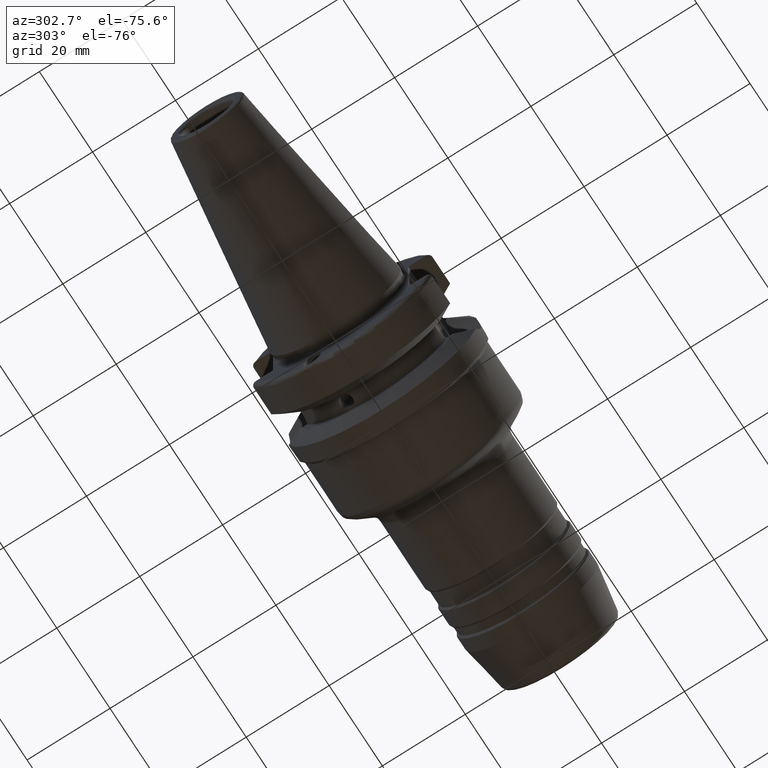
[diagram: clean part render]
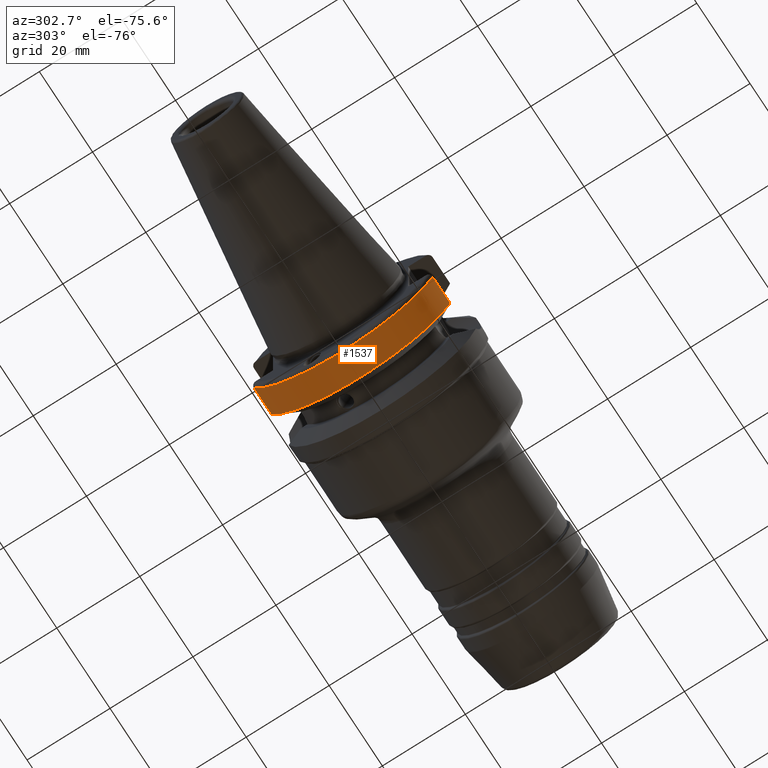
[diagram: same view with one face highlighted and labeled with its STEP entity id]
A machine part, auxiliary view. The second image highlights one B-rep face of the part: STEP entity #1537.
In plain terms, the highlighted cylindrical surface (partial cylindrical patch) has radius 23 mm, axis along (1, 0, 0).
Its self-contained STEP definition (entity closure, byte-faithful):
#168=LINE('',#2918,#241);
#175=LINE('',#2973,#248);
#241=VECTOR('',#2171,10.);
#248=VECTOR('',#2208,10.);
#293=CYLINDRICAL_SURFACE('',#1755,23.);
#369=FACE_OUTER_BOUND('',#471,.T.);
#471=EDGE_LOOP('',(#1325,#1326,#1327,#1328));
#579=CIRCLE('',#1754,23.);
#580=CIRCLE('',#1756,23.);
#716=VERTEX_POINT('',#2902);
#717=VERTEX_POINT('',#2907);
#725=VERTEX_POINT('',#2960);
#727=VERTEX_POINT('',#2971);
#921=EDGE_CURVE('',#716,#717,#168,.T.);
#936=EDGE_CURVE('',#716,#725,#579,.T.);
#939=EDGE_CURVE('',#717,#727,#580,.T.);
#940=EDGE_CURVE('',#727,#725,#175,.T.);
#1325=ORIENTED_EDGE('',*,*,#921,.T.);
#1326=ORIENTED_EDGE('',*,*,#939,.T.);
#1327=ORIENTED_EDGE('',*,*,#940,.T.);
#1328=ORIENTED_EDGE('',*,*,#936,.F.);
#1537=ADVANCED_FACE('',(#369),#293,.T.);
#1754=AXIS2_PLACEMENT_3D('',#2961,#2202,#2203);
#1755=AXIS2_PLACEMENT_3D('',#2970,#2204,#2205);
#1756=AXIS2_PLACEMENT_3D('',#2972,#2206,#2207);
#2171=DIRECTION('',(-1.,-1.62798202122572E-21,0.));
#2202=DIRECTION('center_axis',(1.,1.62798202122572E-21,0.));
#2203=DIRECTION('ref_axis',(0.,0.,-1.));
#2204=DIRECTION('center_axis',(1.,1.62798202122572E-21,0.));
#2205=DIRECTION('ref_axis',(0.,1.,0.));
#2206=DIRECTION('center_axis',(1.,1.62798202122572E-21,0.));
#2207=DIRECTION('ref_axis',(0.,0.,-1.));
#2208=DIRECTION('',(1.,1.62798202122572E-21,0.));
#2902=CARTESIAN_POINT('',(9.57005904049381,-21.5452430944744,-8.05));
#2907=CARTESIAN_POINT('',(2.99999999999999,-21.5452430944745,-8.05));
#2918=CARTESIAN_POINT('',(6.2850295202469,-21.5452430944745,-8.05));
#2960=CARTESIAN_POINT('',(9.57005904049381,21.5452430944744,-8.05));
#2961=CARTESIAN_POINT('Origin',(9.57005904049381,2.08175114951191E-15,0.));
#2970=CARTESIAN_POINT('Origin',(6.2850295202469,2.08174580154291E-15,0.));
#2971=CARTESIAN_POINT('',(2.99999999999999,21.5452430944745,-8.05));
#2972=CARTESIAN_POINT('Origin',(2.99999999999999,2.08174045357391E-15,0.));
#2973=CARTESIAN_POINT('',(6.2850295202469,21.5452430944745,-8.05));